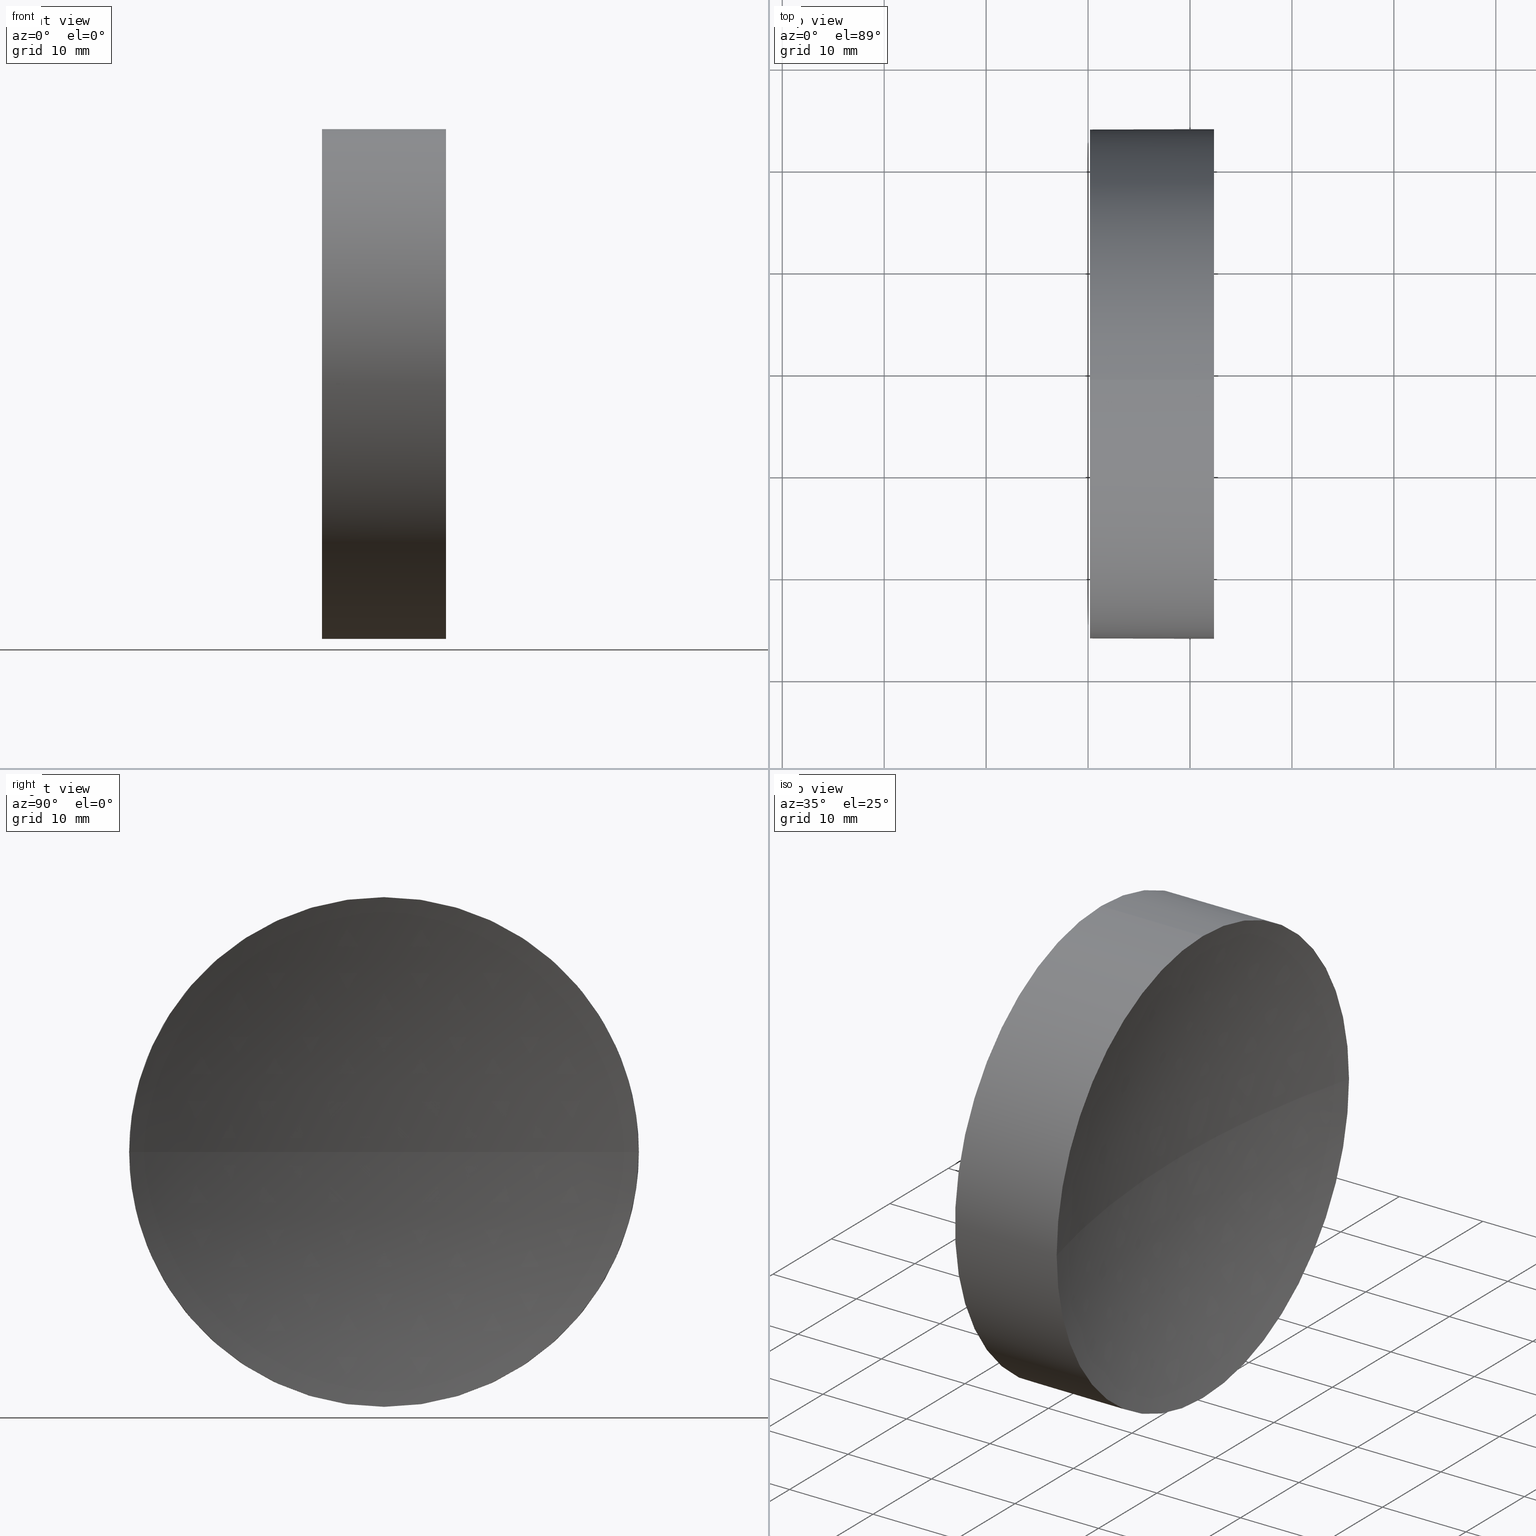
[diagram: canonical four-view strip — front | top / right | iso, engineering-drawing reading convention]
A machine part, canonical four-view strip (front | top / right | iso — engineering-drawing reading convention). The complete STEP part file that produces these views, byte-faithful:
ISO-10303-21;
HEADER;
FILE_DESCRIPTION (( 'STEP AP214' ),
    '1' );
FILE_NAME ('270042.STEP',
    '2019-07-23T02:32:34',
    ( '' ),
    ( '' ),
    'SwSTEP 2.0',
    'SolidWorks 2016',
    '' );
FILE_SCHEMA (( 'AUTOMOTIVE_DESIGN' ));
ENDSEC;

DATA;
#1 = VERTEX_POINT ( 'NONE', #165 ) ;
#2 = AXIS2_PLACEMENT_3D ( 'NONE', #14, #115, #178 ) ;
#3 = ORIENTED_EDGE ( 'NONE', *, *, #19, .F. ) ;
#4 = ADVANCED_FACE ( 'NONE', ( #23 ), #158, .F. ) ;
#5 = DIRECTION ( 'NONE',  ( -1.000000000000000000, -0.0000000000000000000, -0.0000000000000000000 ) ) ;
#6 = EDGE_CURVE ( 'NONE', #117, #123, #87, .T. ) ;
#7 = CARTESIAN_POINT ( 'NONE',  ( 339.1853110698390300, 138.7560422467447600, 0.0000000000000000000 ) ) ;
#8 = CIRCLE ( 'NONE', #185, 24.99999999999999300 ) ;
#9 = DIRECTION ( 'NONE',  ( -1.000000000000000000, -0.0000000000000000000, -0.0000000000000000000 ) ) ;
#10 = UNCERTAINTY_MEASURE_WITH_UNIT (LENGTH_MEASURE( 1.000000000000000100E-005 ), #37, 'distance_accuracy_value', 'NONE');
#11 = DIRECTION ( 'NONE',  ( 0.0000000000000000000, 0.0000000000000000000, 1.000000000000000000 ) ) ;
#12 = LINE ( 'NONE', #110, #186 ) ;
#13 = DIRECTION ( 'NONE',  ( 1.000000000000000000, 0.0000000000000000000, 0.0000000000000000000 ) ) ;
#14 = CARTESIAN_POINT ( 'NONE',  ( 339.1853110698390300, 138.7560422467447600, 0.0000000000000000000 ) ) ;
#15 = CARTESIAN_POINT ( 'NONE',  ( 242.3607274146536400, 138.7560422467448700, 0.0000000000000000000 ) ) ;
#16 = ORIENTED_EDGE ( 'NONE', *, *, #88, .F. ) ;
#17 = AXIS2_PLACEMENT_3D ( 'NONE', #143, #56, #131 ) ;
#18 = ORIENTED_EDGE ( 'NONE', *, *, #69, .T. ) ;
#19 = EDGE_CURVE ( 'NONE', #1, #114, #12, .T. ) ;
#20 =( GEOMETRIC_REPRESENTATION_CONTEXT ( 3 ) GLOBAL_UNCERTAINTY_ASSIGNED_CONTEXT ( ( #10 ) ) GLOBAL_UNIT_ASSIGNED_CONTEXT ( ( #37, #96, #180 ) ) REPRESENTATION_CONTEXT ( 'NONE', 'WORKASPACE' ) );
#21 = AXIS2_PLACEMENT_3D ( 'NONE', #152, #13, #127 ) ;
#22 = EDGE_CURVE ( 'NONE', #1, #117, #59, .T. ) ;
#23 = FACE_OUTER_BOUND ( 'NONE', #132, .T. ) ;
#24 = PRODUCT_DEFINITION_FORMATION_WITH_SPECIFIED_SOURCE ( '�κ�', '', #173, .NOT_KNOWN. ) ;
#25 = VERTEX_POINT ( 'NONE', #51 ) ;
#26 = CARTESIAN_POINT ( 'NONE',  ( 242.3607274146536400, 138.7560422467448700, 0.0000000000000000000 ) ) ;
#27 = CARTESIAN_POINT ( 'NONE',  ( 242.3607274146536400, 138.7560422467448700, 0.0000000000000000000 ) ) ;
#28 = SURFACE_STYLE_USAGE ( .BOTH. , #166 ) ;
#29 = ORIENTED_EDGE ( 'NONE', *, *, #86, .T. ) ;
#30 = ADVANCED_FACE ( 'NONE', ( #75 ), #72, .T. ) ;
#31 = CARTESIAN_POINT ( 'NONE',  ( 217.9702860043302100, 138.7560422467448700, 0.0000000000000000000 ) ) ;
#32 = AXIS2_PLACEMENT_3D ( 'NONE', #150, #81, #109 ) ;
#33 = DIRECTION ( 'NONE',  ( 0.0000000000000000000, 1.224646799147353200E-016, -1.000000000000000000 ) ) ;
#34 = ADVANCED_FACE ( 'NONE', ( #134 ), #45, .F. ) ;
#35 = PRESENTATION_STYLE_ASSIGNMENT (( #70 ) ) ;
#36 = CARTESIAN_POINT ( 'NONE',  ( 0.0000000000000000000, 0.0000000000000000000, 0.0000000000000000000 ) ) ;
#37 =( LENGTH_UNIT ( ) NAMED_UNIT ( * ) SI_UNIT ( .MILLI., .METRE. ) );
#38 = DIRECTION ( 'NONE',  ( 0.0000000000000000000, 0.0000000000000000000, 1.000000000000000000 ) ) ;
#39 = VERTEX_POINT ( 'NONE', #94 ) ;
#40 = PRESENTATION_LAYER_ASSIGNMENT (  '', '', ( #80 ) ) ;
#41 = LINE ( 'NONE', #130, #89 ) ;
#42 = EDGE_CURVE ( 'NONE', #39, #25, #157, .T. ) ;
#43 = AXIS2_PLACEMENT_3D ( 'NONE', #36, #11, #141 ) ;
#44 = PRESENTATION_LAYER_ASSIGNMENT (  '', '', ( #155 ) ) ;
#45 = SPHERICAL_SURFACE ( 'NONE', #32, 99.99999999999997200 ) ;
#46 = AXIS2_PLACEMENT_3D ( 'NONE', #170, #68, #55 ) ;
#47 = EDGE_LOOP ( 'NONE', ( #119, #18, #53, #60, #161 ) ) ;
#48 = ADVANCED_FACE ( 'NONE', ( #83 ), #144, .T. ) ;
#49 = EDGE_LOOP ( 'NONE', ( #174, #181, #148, #77 ) ) ;
#50 = CARTESIAN_POINT ( 'NONE',  ( 242.3607274146536400, 138.7560422467448700, 0.0000000000000000000 ) ) ;
#51 = CARTESIAN_POINT ( 'NONE',  ( 239.1853110698390300, 138.7560422467447600, 0.0000000000000000000 ) ) ;
#52 = FILL_AREA_STYLE_COLOUR ( '', #128 ) ;
#53 = ORIENTED_EDGE ( 'NONE', *, *, #160, .T. ) ;
#54 = APPLICATION_PROTOCOL_DEFINITION ( 'draft international standard', 'automotive_design', 1998, #172 ) ;
#55 = DIRECTION ( 'NONE',  ( 0.0000000000000000000, 0.0000000000000000000, 1.000000000000000000 ) ) ;
#56 = DIRECTION ( 'NONE',  ( -1.000000000000000000, -0.0000000000000000000, -0.0000000000000000000 ) ) ;
#57 = ORIENTED_EDGE ( 'NONE', *, *, #106, .T. ) ;
#58 =( GEOMETRIC_REPRESENTATION_CONTEXT ( 3 ) GLOBAL_UNCERTAINTY_ASSIGNED_CONTEXT ( ( #133 ) ) GLOBAL_UNIT_ASSIGNED_CONTEXT ( ( #82, #179, #129 ) ) REPRESENTATION_CONTEXT ( 'NONE', 'WORKASPACE' ) );
#59 = CIRCLE ( 'NONE', #103, 24.99999999999999300 ) ;
#60 = ORIENTED_EDGE ( 'NONE', *, *, #19, .T. ) ;
#61 = SHAPE_DEFINITION_REPRESENTATION ( #107, #62 ) ;
#62 = ADVANCED_BREP_SHAPE_REPRESENTATION ( '270042', ( #111, #43 ), #58 ) ;
#63 = PRESENTATION_STYLE_ASSIGNMENT (( #28 ) ) ;
#64 = DIRECTION ( 'NONE',  ( 0.0000000000000000000, 1.000000000000000000, 0.0000000000000000000 ) ) ;
#65 = DIRECTION ( 'NONE',  ( 0.0000000000000000000, 0.0000000000000000000, 1.000000000000000000 ) ) ;
#66 = DIRECTION ( 'NONE',  ( 0.0000000000000000000, 0.0000000000000000000, 1.000000000000000000 ) ) ;
#67 = DIRECTION ( 'NONE',  ( -1.000000000000000000, -0.0000000000000000000, -0.0000000000000000000 ) ) ;
#68 = DIRECTION ( 'NONE',  ( -1.000000000000000000, -0.0000000000000000000, -0.0000000000000000000 ) ) ;
#69 = EDGE_CURVE ( 'NONE', #123, #39, #8, .T. ) ;
#70 = SURFACE_STYLE_USAGE ( .BOTH. , #156 ) ;
#71 =( NAMED_UNIT ( * ) SI_UNIT ( $, .STERADIAN. ) SOLID_ANGLE_UNIT ( ) );
#72 = CYLINDRICAL_SURFACE ( 'NONE', #118, 24.99999999999999300 ) ;
#73 =( LENGTH_UNIT ( ) NAMED_UNIT ( * ) SI_UNIT ( .MILLI., .METRE. ) );
#74 = AXIS2_PLACEMENT_3D ( 'NONE', #26, #67, #65 ) ;
#75 = FACE_OUTER_BOUND ( 'NONE', #92, .T. ) ;
#76 = ORIENTED_EDGE ( 'NONE', *, *, #6, .T. ) ;
#77 = ORIENTED_EDGE ( 'NONE', *, *, #88, .T. ) ;
#78 = DIRECTION ( 'NONE',  ( 0.0000000000000000000, 0.0000000000000000000, -1.000000000000000000 ) ) ;
#79 = CIRCLE ( 'NONE', #2, 99.99999999999997200 ) ;
#80 = STYLED_ITEM ( 'NONE', ( #35 ), #111 ) ;
#81 = DIRECTION ( 'NONE',  ( 0.0000000000000000000, 0.0000000000000000000, -1.000000000000000000 ) ) ;
#82 =( LENGTH_UNIT ( ) NAMED_UNIT ( * ) SI_UNIT ( .MILLI., .METRE. ) );
#83 = FACE_OUTER_BOUND ( 'NONE', #47, .T. ) ;
#84 = DIRECTION ( 'NONE',  ( -1.000000000000000000, -0.0000000000000000000, -0.0000000000000000000 ) ) ;
#85 = APPLICATION_CONTEXT ( 'automotive_design' ) ;
#86 = EDGE_CURVE ( 'NONE', #114, #153, #105, .T. ) ;
#87 = CIRCLE ( 'NONE', #74, 24.99999999999999300 ) ;
#88 = EDGE_CURVE ( 'NONE', #117, #25, #79, .T. ) ;
#89 = VECTOR ( 'NONE', #84, 1000.000000000000000 ) ;
#90 = CLOSED_SHELL ( 'NONE', ( #30, #4, #34, #48, #91 ) ) ;
#91 = ADVANCED_FACE ( 'NONE', ( #167 ), #101, .F. ) ;
#92 = EDGE_LOOP ( 'NONE', ( #76, #57, #108, #3, #146 ) ) ;
#93 = CARTESIAN_POINT ( 'NONE',  ( 339.1853110698390300, 138.7560422467447600, 0.0000000000000000000 ) ) ;
#94 = CARTESIAN_POINT ( 'NONE',  ( 242.3607274146536400, 113.7560422467447700, -3.061616997868382300E-015 ) ) ;
#95 = UNCERTAINTY_MEASURE_WITH_UNIT (LENGTH_MEASURE( 1.000000000000000100E-005 ), #73, 'distance_accuracy_value', 'NONE');
#96 =( NAMED_UNIT ( * ) PLANE_ANGLE_UNIT ( ) SI_UNIT ( $, .RADIAN. ) );
#97 = PRODUCT_CONTEXT ( 'NONE', #172, 'mechanical' ) ;
#98 = APPLICATION_PROTOCOL_DEFINITION ( 'draft international standard', 'automotive_design', 1998, #85 ) ;
#99 = CARTESIAN_POINT ( 'NONE',  ( 242.3607274146536400, 138.7560422467448700, -24.99999999999999300 ) ) ;
#100 = ORIENTED_EDGE ( 'NONE', *, *, #22, .F. ) ;
#101 = PLANE ( 'NONE',  #21 ) ;
#102 =( GEOMETRIC_REPRESENTATION_CONTEXT ( 3 ) GLOBAL_UNCERTAINTY_ASSIGNED_CONTEXT ( ( #95 ) ) GLOBAL_UNIT_ASSIGNED_CONTEXT ( ( #73, #182, #71 ) ) REPRESENTATION_CONTEXT ( 'NONE', 'WORKASPACE' ) );
#103 = AXIS2_PLACEMENT_3D ( 'NONE', #50, #5, #66 ) ;
#104 = PRODUCT_RELATED_PRODUCT_CATEGORY ( 'part', '', ( #173 ) ) ;
#105 = CIRCLE ( 'NONE', #46, 24.99999999999999300 ) ;
#106 = EDGE_CURVE ( 'NONE', #123, #153, #41, .T. ) ;
#107 = PRODUCT_DEFINITION_SHAPE ( 'NONE', 'NONE',  #183 ) ;
#108 = ORIENTED_EDGE ( 'NONE', *, *, #86, .F. ) ;
#109 = DIRECTION ( 'NONE',  ( 0.0000000000000000000, 1.000000000000000000, 0.0000000000000000000 ) ) ;
#110 = CARTESIAN_POINT ( 'NONE',  ( 217.9702860043302100, 138.7560422467448700, 24.99999999999999300 ) ) ;
#111 = MANIFOLD_SOLID_BREP ( '��ת1', #90 ) ;
#112 = FILL_AREA_STYLE ('',( #169 ) ) ;
#113 = FILL_AREA_STYLE ('',( #52 ) ) ;
#114 = VERTEX_POINT ( 'NONE', #126 ) ;
#115 = DIRECTION ( 'NONE',  ( 0.0000000000000000000, 0.0000000000000000000, 1.000000000000000000 ) ) ;
#116 = AXIS2_PLACEMENT_3D ( 'NONE', #93, #78, #64 ) ;
#117 = VERTEX_POINT ( 'NONE', #142 ) ;
#118 = AXIS2_PLACEMENT_3D ( 'NONE', #177, #175, #139 ) ;
#119 = ORIENTED_EDGE ( 'NONE', *, *, #106, .F. ) ;
#120 = MECHANICAL_DESIGN_GEOMETRIC_PRESENTATION_REPRESENTATION (  '', ( #80 ), #102 ) ;
#121 = EDGE_CURVE ( 'NONE', #153, #114, #124, .T. ) ;
#122 = AXIS2_PLACEMENT_3D ( 'NONE', #15, #154, #168 ) ;
#123 = VERTEX_POINT ( 'NONE', #99 ) ;
#124 = CIRCLE ( 'NONE', #17, 24.99999999999999300 ) ;
#125 = AXIS2_PLACEMENT_3D ( 'NONE', #31, #9, #163 ) ;
#126 = CARTESIAN_POINT ( 'NONE',  ( 230.1853110698390300, 138.7560422467448700, 24.99999999999999300 ) ) ;
#127 = DIRECTION ( 'NONE',  ( 0.0000000000000000000, 0.0000000000000000000, -1.000000000000000000 ) ) ;
#128 = COLOUR_RGB ( '',1.000000000000000000, 1.000000000000000000, 1.000000000000000000 ) ;
#129 =( NAMED_UNIT ( * ) SI_UNIT ( $, .STERADIAN. ) SOLID_ANGLE_UNIT ( ) );
#130 = CARTESIAN_POINT ( 'NONE',  ( 217.9702860043302100, 138.7560422467448700, -24.99999999999999300 ) ) ;
#131 = DIRECTION ( 'NONE',  ( 0.0000000000000000000, 0.0000000000000000000, 1.000000000000000000 ) ) ;
#132 = EDGE_LOOP ( 'NONE', ( #171, #136, #16, #100 ) ) ;
#133 = UNCERTAINTY_MEASURE_WITH_UNIT (LENGTH_MEASURE( 1.000000000000000100E-005 ), #82, 'distance_accuracy_value', 'NONE');
#134 = FACE_OUTER_BOUND ( 'NONE', #49, .T. ) ;
#135 = PRODUCT_DEFINITION_CONTEXT ( 'detailed design', #85, 'design' ) ;
#136 = ORIENTED_EDGE ( 'NONE', *, *, #42, .T. ) ;
#137 = DIRECTION ( 'NONE',  ( 0.0000000000000000000, 1.000000000000000000, 1.224646799147353200E-016 ) ) ;
#138 = DIRECTION ( 'NONE',  ( -1.000000000000000000, -0.0000000000000000000, -0.0000000000000000000 ) ) ;
#139 = DIRECTION ( 'NONE',  ( 0.0000000000000000000, 0.0000000000000000000, 1.000000000000000000 ) ) ;
#140 = AXIS2_PLACEMENT_3D ( 'NONE', #7, #33, #137 ) ;
#141 = DIRECTION ( 'NONE',  ( 1.000000000000000000, 0.0000000000000000000, 0.0000000000000000000 ) ) ;
#142 = CARTESIAN_POINT ( 'NONE',  ( 242.3607274146536400, 163.7560422467448700, 0.0000000000000000000 ) ) ;
#143 = CARTESIAN_POINT ( 'NONE',  ( 230.1853110698390300, 138.7560422467448700, 0.0000000000000000000 ) ) ;
#144 = CYLINDRICAL_SURFACE ( 'NONE', #125, 24.99999999999999300 ) ;
#145 = SURFACE_STYLE_FILL_AREA ( #113 ) ;
#146 = ORIENTED_EDGE ( 'NONE', *, *, #22, .T. ) ;
#147 = CIRCLE ( 'NONE', #122, 24.99999999999999300 ) ;
#148 = ORIENTED_EDGE ( 'NONE', *, *, #6, .F. ) ;
#149 = ORIENTED_EDGE ( 'NONE', *, *, #121, .T. ) ;
#150 = CARTESIAN_POINT ( 'NONE',  ( 339.1853110698390300, 138.7560422467447600, 0.0000000000000000000 ) ) ;
#151 = DIRECTION ( 'NONE',  ( -1.000000000000000000, -0.0000000000000000000, -0.0000000000000000000 ) ) ;
#152 = CARTESIAN_POINT ( 'NONE',  ( 230.1853110698390300, 138.7560422467448700, 0.0000000000000000000 ) ) ;
#153 = VERTEX_POINT ( 'NONE', #184 ) ;
#154 = DIRECTION ( 'NONE',  ( -1.000000000000000000, -0.0000000000000000000, -0.0000000000000000000 ) ) ;
#155 = STYLED_ITEM ( 'NONE', ( #63 ), #62 ) ;
#156 = SURFACE_SIDE_STYLE ('',( #145 ) ) ;
#157 = CIRCLE ( 'NONE', #140, 99.99999999999997200 ) ;
#158 = SPHERICAL_SURFACE ( 'NONE', #116, 99.99999999999997200 ) ;
#159 = EDGE_LOOP ( 'NONE', ( #29, #149 ) ) ;
#160 = EDGE_CURVE ( 'NONE', #39, #1, #147, .T. ) ;
#161 = ORIENTED_EDGE ( 'NONE', *, *, #121, .F. ) ;
#162 = SURFACE_STYLE_FILL_AREA ( #112 ) ;
#163 = DIRECTION ( 'NONE',  ( 0.0000000000000000000, 0.0000000000000000000, 1.000000000000000000 ) ) ;
#164 = MECHANICAL_DESIGN_GEOMETRIC_PRESENTATION_REPRESENTATION (  '', ( #155 ), #20 ) ;
#165 = CARTESIAN_POINT ( 'NONE',  ( 242.3607274146536400, 138.7560422467448700, 24.99999999999999300 ) ) ;
#166 = SURFACE_SIDE_STYLE ('',( #162 ) ) ;
#167 = FACE_OUTER_BOUND ( 'NONE', #159, .T. ) ;
#168 = DIRECTION ( 'NONE',  ( 0.0000000000000000000, 0.0000000000000000000, 1.000000000000000000 ) ) ;
#169 = FILL_AREA_STYLE_COLOUR ( '', #176 ) ;
#170 = CARTESIAN_POINT ( 'NONE',  ( 230.1853110698390300, 138.7560422467448700, 0.0000000000000000000 ) ) ;
#171 = ORIENTED_EDGE ( 'NONE', *, *, #160, .F. ) ;
#172 = APPLICATION_CONTEXT ( 'automotive_design' ) ;
#173 = PRODUCT ( '270042', '270042', '', ( #97 ) ) ;
#174 = ORIENTED_EDGE ( 'NONE', *, *, #42, .F. ) ;
#175 = DIRECTION ( 'NONE',  ( -1.000000000000000000, -0.0000000000000000000, -0.0000000000000000000 ) ) ;
#176 = COLOUR_RGB ( '',1.000000000000000000, 1.000000000000000000, 1.000000000000000000 ) ;
#177 = CARTESIAN_POINT ( 'NONE',  ( 217.9702860043302100, 138.7560422467448700, 0.0000000000000000000 ) ) ;
#178 = DIRECTION ( 'NONE',  ( 1.000000000000000000, 0.0000000000000000000, 0.0000000000000000000 ) ) ;
#179 =( NAMED_UNIT ( * ) PLANE_ANGLE_UNIT ( ) SI_UNIT ( $, .RADIAN. ) );
#180 =( NAMED_UNIT ( * ) SI_UNIT ( $, .STERADIAN. ) SOLID_ANGLE_UNIT ( ) );
#181 = ORIENTED_EDGE ( 'NONE', *, *, #69, .F. ) ;
#182 =( NAMED_UNIT ( * ) PLANE_ANGLE_UNIT ( ) SI_UNIT ( $, .RADIAN. ) );
#183 = PRODUCT_DEFINITION ( 'δ֪', '', #24, #135 ) ;
#184 = CARTESIAN_POINT ( 'NONE',  ( 230.1853110698390300, 138.7560422467448700, -24.99999999999999300 ) ) ;
#185 = AXIS2_PLACEMENT_3D ( 'NONE', #27, #151, #38 ) ;
#186 = VECTOR ( 'NONE', #138, 1000.000000000000000 ) ;
ENDSEC;
END-ISO-10303-21;
